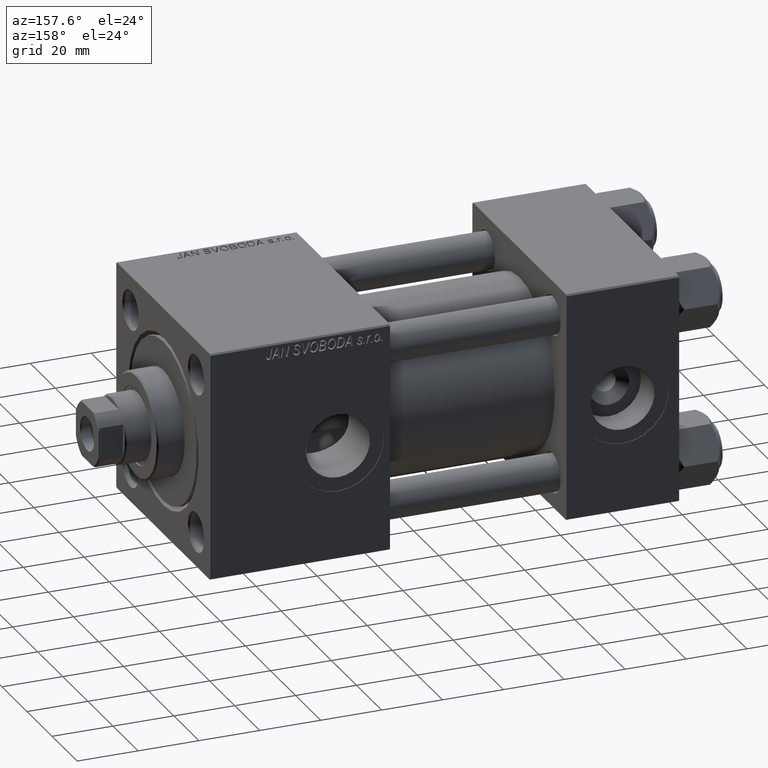
[diagram: clean part render]
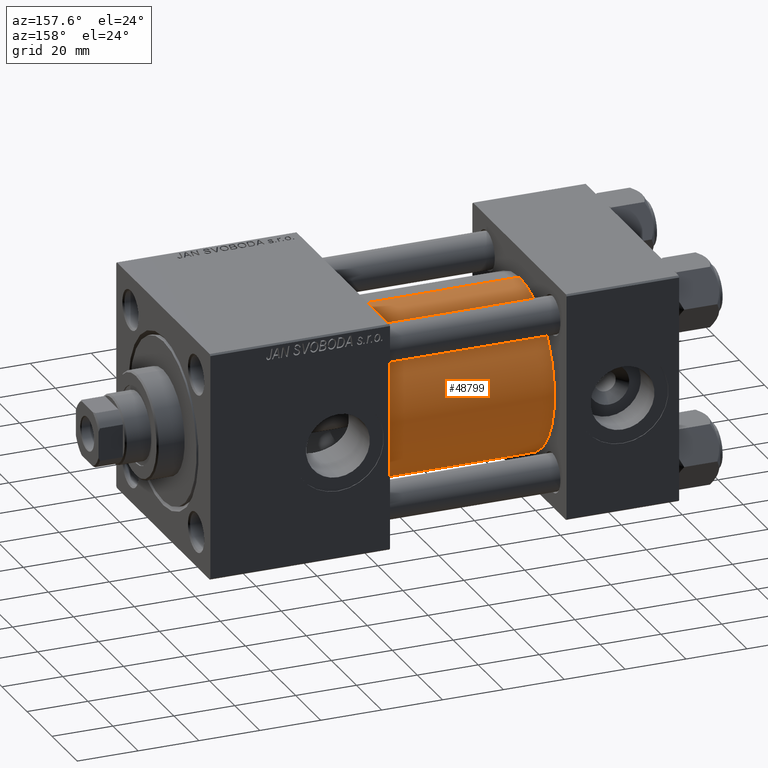
[diagram: same view with one face highlighted and labeled with its STEP entity id]
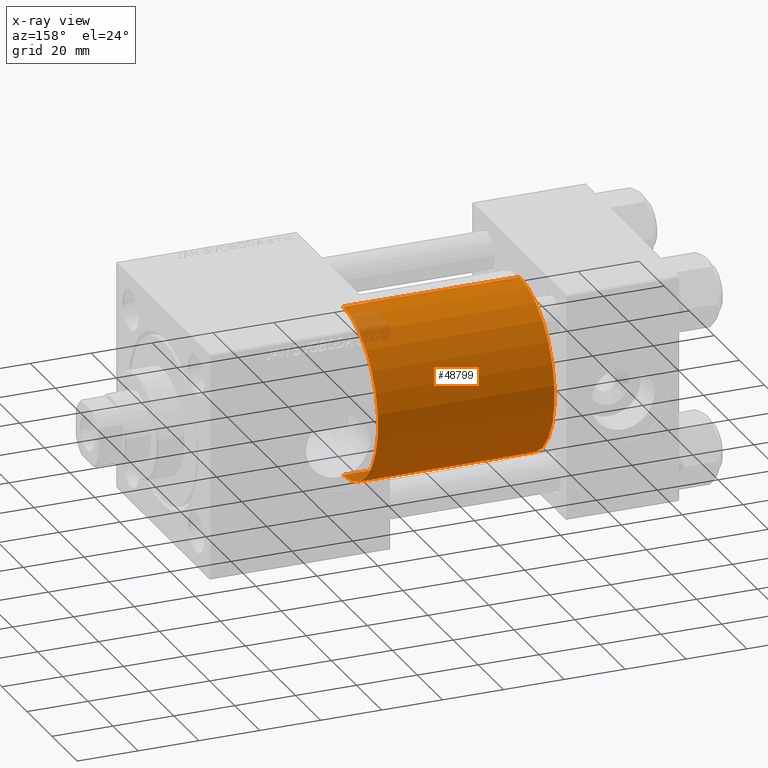
[diagram: x-ray of the same camera — body ghosted, the highlighted face saturated]
A machine part, auxiliary view. The second image highlights one B-rep face of the part: STEP entity #48799.
The next image is the same camera in x-ray: the body ghosted, the highlighted face saturated — about 4% of this face is hidden behind the body in this view.
In plain terms, the highlighted cylindrical surface (partial cylindrical patch) has radius 28 mm, axis along (-1, -0, -0).
Its self-contained STEP definition (entity closure, byte-faithful):
#1964 = DIRECTION ( 'NONE',  ( -1.000000000000000000, -0.000000000000000000, -0.000000000000000000 ) ) ;
#2302 = DIRECTION ( 'NONE',  ( 0.000000000000000000, 0.000000000000000000, -1.000000000000000000 ) ) ;
#2535 = CARTESIAN_POINT ( 'NONE',  ( 37.00000000000000000, -2.602085213965210642E-15, 0.000000000000000000 ) ) ;
#4829 = CARTESIAN_POINT ( 'NONE',  ( 95.00000000000000000, -2.602085213965210642E-15, 0.000000000000000000 ) ) ;
#6103 = DIRECTION ( 'NONE',  ( 0.000000000000000000, 0.000000000000000000, 1.000000000000000000 ) ) ;
#8394 = CYLINDRICAL_SURFACE ( 'NONE', #12373, 28.00000000000000000 ) ;
#10419 = AXIS2_PLACEMENT_3D ( 'NONE', #2535, #48726, #6103 ) ;
#11369 = ORIENTED_EDGE ( 'NONE', *, *, #30272, .F. ) ;
#12373 = AXIS2_PLACEMENT_3D ( 'NONE', #4829, #47217, #50017 ) ;
#13789 = EDGE_CURVE ( 'NONE', #18534, #43974, #26624, .T. ) ;
#17526 = EDGE_LOOP ( 'NONE', ( #11369, #33633, #44259, #45938 ) ) ;
#18529 = DIRECTION ( 'NONE',  ( 1.000000000000000000, 0.000000000000000000, 0.000000000000000000 ) ) ;
#18534 = VERTEX_POINT ( 'NONE', #23688 ) ;
#20062 = FACE_OUTER_BOUND ( 'NONE', #17526, .T. ) ;
#21580 = CARTESIAN_POINT ( 'NONE',  ( 95.00000000000000000, -2.602085213965210642E-15, 0.000000000000000000 ) ) ;
#23688 = CARTESIAN_POINT ( 'NONE',  ( 37.00000000000000000, 8.269258236473776482E-16, -28.00000000000000000 ) ) ;
#26617 = CARTESIAN_POINT ( 'NONE',  ( 95.00000000000000000, -2.602085213965210642E-15, 28.00000000000000000 ) ) ;
#26624 = CIRCLE ( 'NONE', #10419, 28.00000000000000000 ) ;
#27488 = VECTOR ( 'NONE', #49724, 1000.000000000000000 ) ;
#29773 = VERTEX_POINT ( 'NONE', #50120 ) ;
#30272 = EDGE_CURVE ( 'NONE', #29773, #35029, #38754, .T. ) ;
#33633 = ORIENTED_EDGE ( 'NONE', *, *, #36815, .T. ) ;
#33763 = CARTESIAN_POINT ( 'NONE',  ( 37.00000000000000000, -2.602085213965210642E-15, 28.00000000000000000 ) ) ;
#34241 = CARTESIAN_POINT ( 'NONE',  ( 95.00000000000000000, 8.269258236473776482E-16, -28.00000000000000000 ) ) ;
#35029 = VERTEX_POINT ( 'NONE', #26617 ) ;
#36482 = CARTESIAN_POINT ( 'NONE',  ( 95.00000000000000000, -2.602085213965210642E-15, 28.00000000000000000 ) ) ;
#36517 = VECTOR ( 'NONE', #1964, 1000.000000000000000 ) ;
#36815 = EDGE_CURVE ( 'NONE', #29773, #18534, #49981, .T. ) ;
#38754 = CIRCLE ( 'NONE', #49230, 28.00000000000000000 ) ;
#40175 = EDGE_CURVE ( 'NONE', #35029, #43974, #44099, .T. ) ;
#43974 = VERTEX_POINT ( 'NONE', #33763 ) ;
#44099 = LINE ( 'NONE', #36482, #36517 ) ;
#44259 = ORIENTED_EDGE ( 'NONE', *, *, #13789, .T. ) ;
#45938 = ORIENTED_EDGE ( 'NONE', *, *, #40175, .F. ) ;
#47217 = DIRECTION ( 'NONE',  ( -1.000000000000000000, -0.000000000000000000, -0.000000000000000000 ) ) ;
#48726 = DIRECTION ( 'NONE',  ( 1.000000000000000000, -0.000000000000000000, 0.000000000000000000 ) ) ;
#48799 = ADVANCED_FACE ( 'NONE', ( #20062 ), #8394, .T. ) ;
#49230 = AXIS2_PLACEMENT_3D ( 'NONE', #21580, #18529, #2302 ) ;
#49724 = DIRECTION ( 'NONE',  ( -1.000000000000000000, -0.000000000000000000, -0.000000000000000000 ) ) ;
#49981 = LINE ( 'NONE', #34241, #27488 ) ;
#50017 = DIRECTION ( 'NONE',  ( 0.000000000000000000, 0.000000000000000000, 1.000000000000000000 ) ) ;
#50120 = CARTESIAN_POINT ( 'NONE',  ( 95.00000000000000000, 8.269258236473776482E-16, -28.00000000000000000 ) ) ;